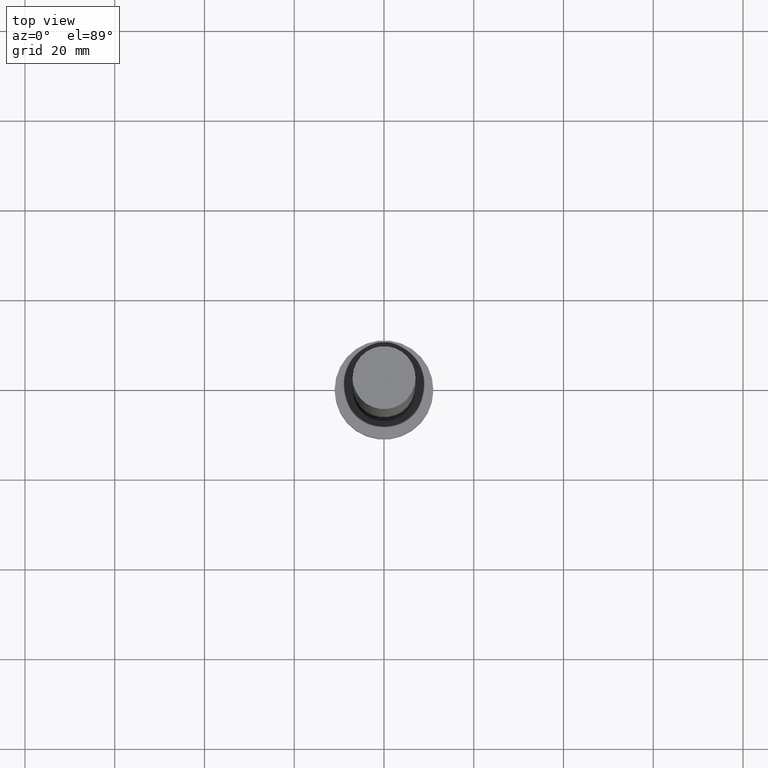
[diagram: clean part render]
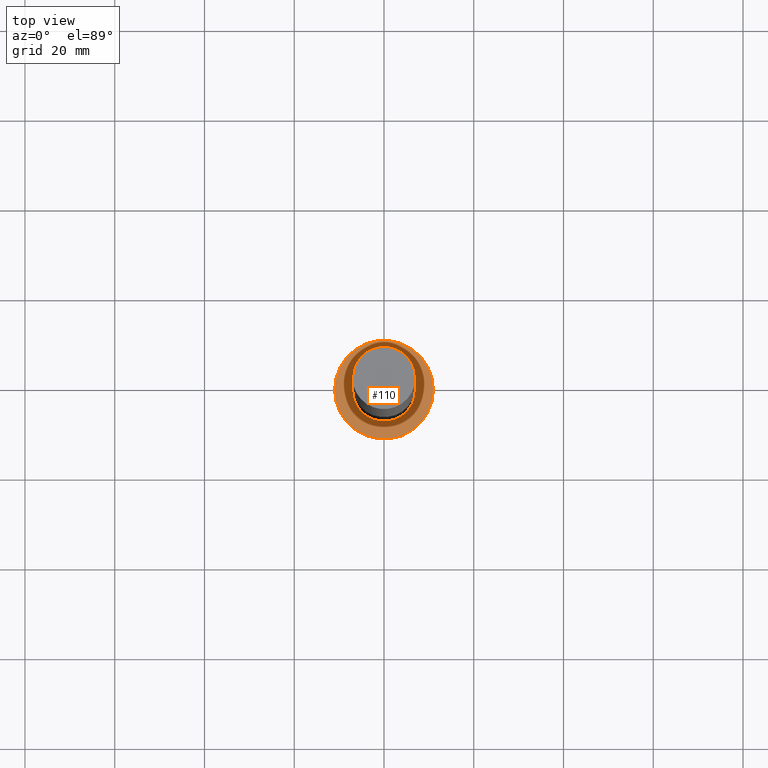
[diagram: same view with one face highlighted and labeled with its STEP entity id]
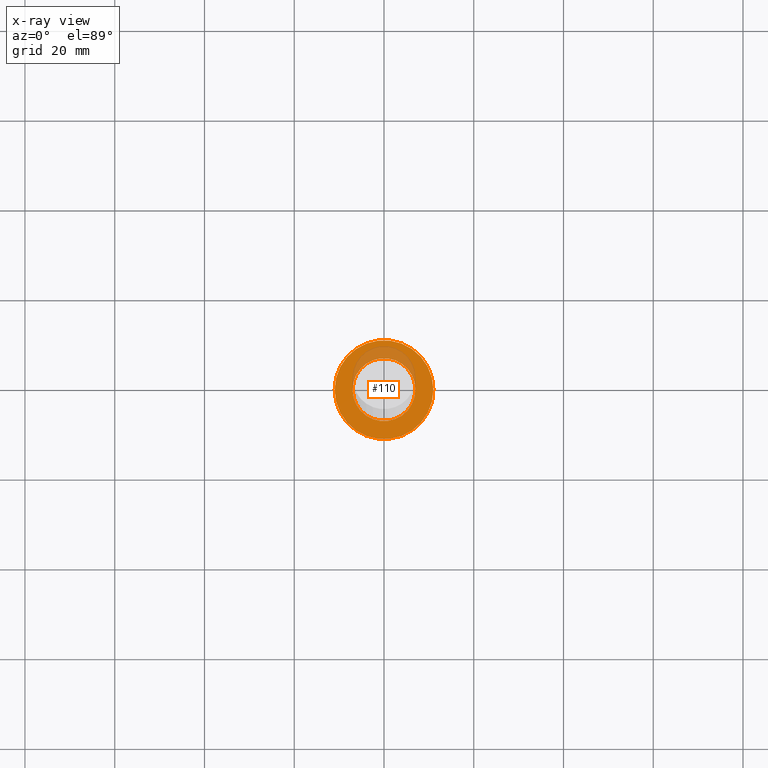
[diagram: x-ray of the same camera — body ghosted, the highlighted face saturated]
A machine part, top view. The second image highlights one B-rep face of the part: STEP entity #110.
The next image is the same camera in x-ray: the body ghosted, the highlighted face saturated — about 17% of this face is hidden behind the body in this view.
In plain terms, the highlighted planar face has unit normal (0, 0, 1).
Its self-contained STEP definition (entity closure, byte-faithful):
#9 = CARTESIAN_POINT ( 'NONE',  ( 7.000000000000000000, 8.572527594031473190E-16, 7.000000000000000000 ) ) ;
#12 = CARTESIAN_POINT ( 'NONE',  ( -11.00000000000000000, 0.000000000000000000, 7.000000000000000000 ) ) ;
#20 = EDGE_CURVE ( 'NONE', #233, #209, #208, .T. ) ;
#26 = EDGE_CURVE ( 'NONE', #209, #233, #224, .T. ) ;
#29 = VERTEX_POINT ( 'NONE', #12 ) ;
#31 = DIRECTION ( 'NONE',  ( 0.000000000000000000, 0.000000000000000000, 1.000000000000000000 ) ) ;
#35 = EDGE_CURVE ( 'NONE', #95, #29, #253, .T. ) ;
#36 = FACE_OUTER_BOUND ( 'NONE', #86, .T. ) ;
#57 = DIRECTION ( 'NONE',  ( 1.000000000000000000, 0.000000000000000000, -0.000000000000000000 ) ) ;
#58 = DIRECTION ( 'NONE',  ( 0.000000000000000000, 0.000000000000000000, 1.000000000000000000 ) ) ;
#76 = AXIS2_PLACEMENT_3D ( 'NONE', #222, #202, #183 ) ;
#85 = CARTESIAN_POINT ( 'NONE',  ( 0.000000000000000000, 0.000000000000000000, 7.000000000000000000 ) ) ;
#86 = EDGE_LOOP ( 'NONE', ( #170, #194 ) ) ;
#88 = CARTESIAN_POINT ( 'NONE',  ( -7.000000000000000000, 0.000000000000000000, 7.000000000000000000 ) ) ;
#93 = DIRECTION ( 'NONE',  ( 0.000000000000000000, 0.000000000000000000, 1.000000000000000000 ) ) ;
#95 = VERTEX_POINT ( 'NONE', #130 ) ;
#99 = DIRECTION ( 'NONE',  ( 1.000000000000000000, 0.000000000000000000, 0.000000000000000000 ) ) ;
#100 = AXIS2_PLACEMENT_3D ( 'NONE', #165, #93, #240 ) ;
#110 = ADVANCED_FACE ( 'NONE', ( #219, #36 ), #199, .T. ) ;
#113 = AXIS2_PLACEMENT_3D ( 'NONE', #85, #31, #211 ) ;
#114 = CIRCLE ( 'NONE', #181, 11.00000000000000000 ) ;
#126 = ORIENTED_EDGE ( 'NONE', *, *, #26, .F. ) ;
#130 = CARTESIAN_POINT ( 'NONE',  ( 11.00000000000000000, 1.347111479062088405E-15, 7.000000000000000000 ) ) ;
#148 = EDGE_CURVE ( 'NONE', #29, #95, #114, .T. ) ;
#159 = CARTESIAN_POINT ( 'NONE',  ( 0.000000000000000000, 0.000000000000000000, 7.000000000000000000 ) ) ;
#165 = CARTESIAN_POINT ( 'NONE',  ( 0.000000000000000000, 0.000000000000000000, 7.000000000000000000 ) ) ;
#170 = ORIENTED_EDGE ( 'NONE', *, *, #148, .T. ) ;
#172 = ORIENTED_EDGE ( 'NONE', *, *, #20, .F. ) ;
#173 = AXIS2_PLACEMENT_3D ( 'NONE', #159, #58, #57 ) ;
#177 = DIRECTION ( 'NONE',  ( 0.000000000000000000, 0.000000000000000000, 1.000000000000000000 ) ) ;
#181 = AXIS2_PLACEMENT_3D ( 'NONE', #182, #177, #99 ) ;
#182 = CARTESIAN_POINT ( 'NONE',  ( 0.000000000000000000, 0.000000000000000000, 7.000000000000000000 ) ) ;
#183 = DIRECTION ( 'NONE',  ( 1.000000000000000000, 0.000000000000000000, 0.000000000000000000 ) ) ;
#194 = ORIENTED_EDGE ( 'NONE', *, *, #35, .T. ) ;
#199 = PLANE ( 'NONE',  #173 ) ;
#202 = DIRECTION ( 'NONE',  ( 0.000000000000000000, 0.000000000000000000, 1.000000000000000000 ) ) ;
#208 = CIRCLE ( 'NONE', #76, 7.000000000000000000 ) ;
#209 = VERTEX_POINT ( 'NONE', #88 ) ;
#211 = DIRECTION ( 'NONE',  ( 1.000000000000000000, 0.000000000000000000, 0.000000000000000000 ) ) ;
#219 = FACE_BOUND ( 'NONE', #249, .T. ) ;
#222 = CARTESIAN_POINT ( 'NONE',  ( 0.000000000000000000, 0.000000000000000000, 7.000000000000000000 ) ) ;
#224 = CIRCLE ( 'NONE', #113, 7.000000000000000000 ) ;
#233 = VERTEX_POINT ( 'NONE', #9 ) ;
#240 = DIRECTION ( 'NONE',  ( 1.000000000000000000, 0.000000000000000000, 0.000000000000000000 ) ) ;
#249 = EDGE_LOOP ( 'NONE', ( #126, #172 ) ) ;
#253 = CIRCLE ( 'NONE', #100, 11.00000000000000000 ) ;